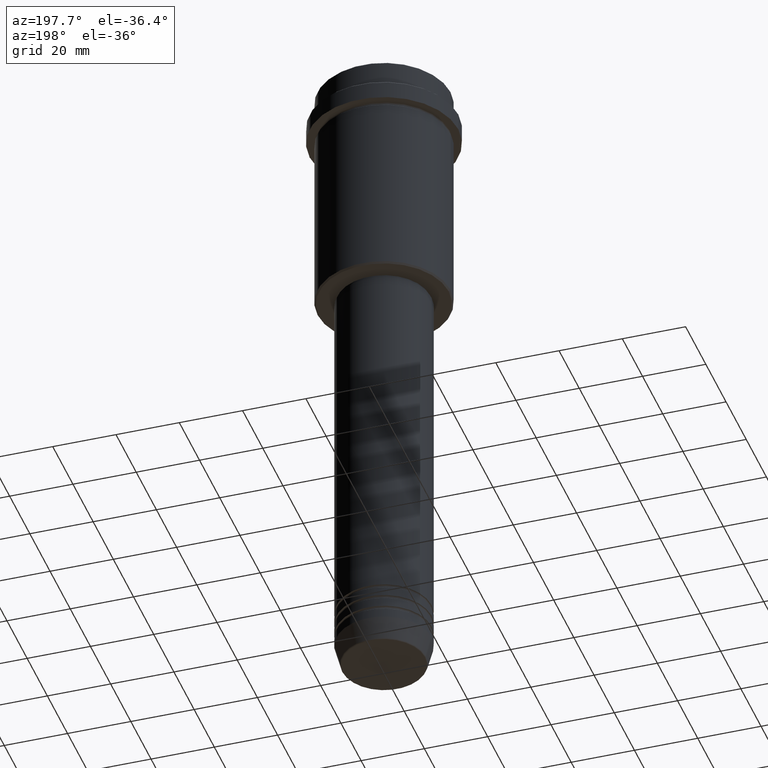
[diagram: clean part render]
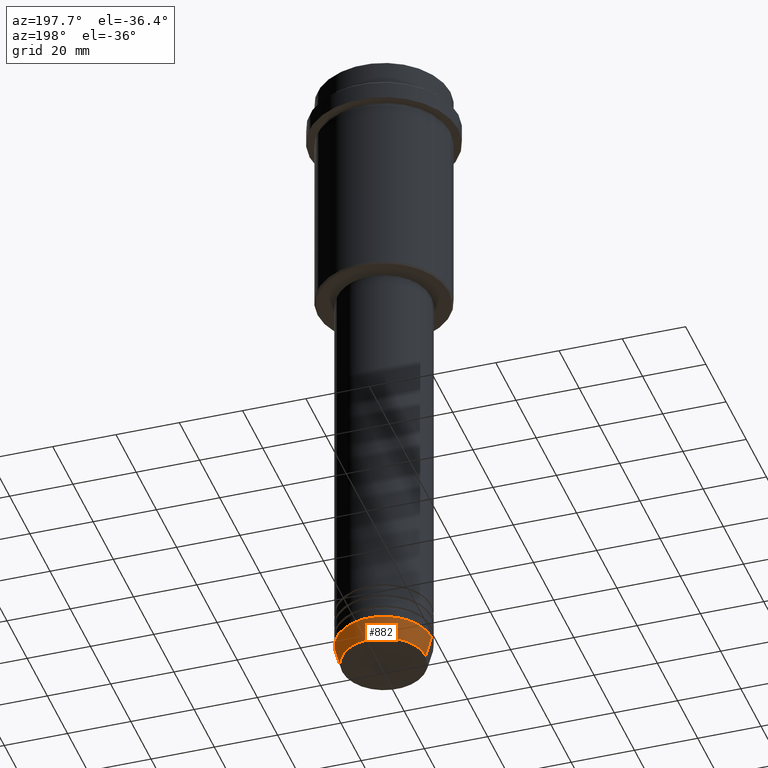
[diagram: same view with one face highlighted and labeled with its STEP entity id]
A machine part, auxiliary view. The second image highlights one B-rep face of the part: STEP entity #882.
In plain terms, the highlighted conical surface has half-angle 15 deg.
Its self-contained STEP definition (entity closure, byte-faithful):
#6 = EDGE_CURVE ( 'NONE', #1381, #1201, #54, .T. ) ;
#29 = CARTESIAN_POINT ( 'NONE',  ( -15.00000000000000000, 1.836970198721029589E-15, -203.0000000000000000 ) ) ;
#31 = CARTESIAN_POINT ( 'NONE',  ( 15.00000000000000000, 0.000000000000000000, -203.0000000000000000 ) ) ;
#35 = AXIS2_PLACEMENT_3D ( 'NONE', #283, #1160, #1058 ) ;
#54 = LINE ( 'NONE', #940, #1174 ) ;
#114 = EDGE_LOOP ( 'NONE', ( #1052, #701, #225, #1120 ) ) ;
#163 = DIRECTION ( 'NONE',  ( 1.000000000000000000, 0.000000000000000000, 0.000000000000000000 ) ) ;
#171 = LINE ( 'NONE', #274, #1278 ) ;
#225 = ORIENTED_EDGE ( 'NONE', *, *, #371, .F. ) ;
#274 = CARTESIAN_POINT ( 'NONE',  ( 15.00000000000000000, 0.000000000000000000, -203.0000000000000000 ) ) ;
#283 = CARTESIAN_POINT ( 'NONE',  ( 0.000000000000000000, 0.000000000000000000, -203.0000000000000000 ) ) ;
#304 = DIRECTION ( 'NONE',  ( -0.000000000000000000, -0.000000000000000000, 1.000000000000000000 ) ) ;
#309 = CARTESIAN_POINT ( 'NONE',  ( -13.22365507213719837, 1.728200442216588780E-15, -209.6294095225512706 ) ) ;
#371 = EDGE_CURVE ( 'NONE', #722, #1201, #380, .T. ) ;
#380 = CIRCLE ( 'NONE', #1177, 15.00000000000000000 ) ;
#441 = DIRECTION ( 'NONE',  ( -0.000000000000000000, -0.000000000000000000, 1.000000000000000000 ) ) ;
#504 = FACE_OUTER_BOUND ( 'NONE', #114, .T. ) ;
#540 = CARTESIAN_POINT ( 'NONE',  ( 0.000000000000000000, 0.000000000000000000, -209.6294095225512706 ) ) ;
#547 = CARTESIAN_POINT ( 'NONE',  ( 0.000000000000000000, 0.000000000000000000, -203.0000000000000000 ) ) ;
#588 = CIRCLE ( 'NONE', #896, 13.22365507213719660 ) ;
#619 = VERTEX_POINT ( 'NONE', #1265 ) ;
#701 = ORIENTED_EDGE ( 'NONE', *, *, #6, .T. ) ;
#722 = VERTEX_POINT ( 'NONE', #31 ) ;
#764 = DIRECTION ( 'NONE',  ( 1.000000000000000000, 0.000000000000000000, 0.000000000000000000 ) ) ;
#858 = EDGE_CURVE ( 'NONE', #619, #722, #171, .T. ) ;
#882 = ADVANCED_FACE ( 'NONE', ( #504 ), #1320, .T. ) ;
#896 = AXIS2_PLACEMENT_3D ( 'NONE', #540, #304, #764 ) ;
#937 = DIRECTION ( 'NONE',  ( 0.2588190451025210725, 0.000000000000000000, 0.9659258262890680902 ) ) ;
#940 = CARTESIAN_POINT ( 'NONE',  ( -15.00000000000000000, 1.836970198721029589E-15, -203.0000000000000000 ) ) ;
#1006 = EDGE_CURVE ( 'NONE', #619, #1381, #588, .T. ) ;
#1052 = ORIENTED_EDGE ( 'NONE', *, *, #1006, .T. ) ;
#1058 = DIRECTION ( 'NONE',  ( 1.000000000000000000, 0.000000000000000000, 0.000000000000000000 ) ) ;
#1120 = ORIENTED_EDGE ( 'NONE', *, *, #858, .F. ) ;
#1160 = DIRECTION ( 'NONE',  ( -0.000000000000000000, -0.000000000000000000, 1.000000000000000000 ) ) ;
#1174 = VECTOR ( 'NONE', #1261, 1000.000000000000114 ) ;
#1177 = AXIS2_PLACEMENT_3D ( 'NONE', #547, #441, #163 ) ;
#1201 = VERTEX_POINT ( 'NONE', #29 ) ;
#1261 = DIRECTION ( 'NONE',  ( -0.2588190451025210725, 3.169619151431769255E-17, 0.9659258262890680902 ) ) ;
#1265 = CARTESIAN_POINT ( 'NONE',  ( 13.22365507213719660, 0.000000000000000000, -209.6294095225512706 ) ) ;
#1278 = VECTOR ( 'NONE', #937, 1000.000000000000114 ) ;
#1320 = CONICAL_SURFACE ( 'NONE', #35, 15.00000000000000000, 0.2617993877991497964 ) ;
#1381 = VERTEX_POINT ( 'NONE', #309 ) ;